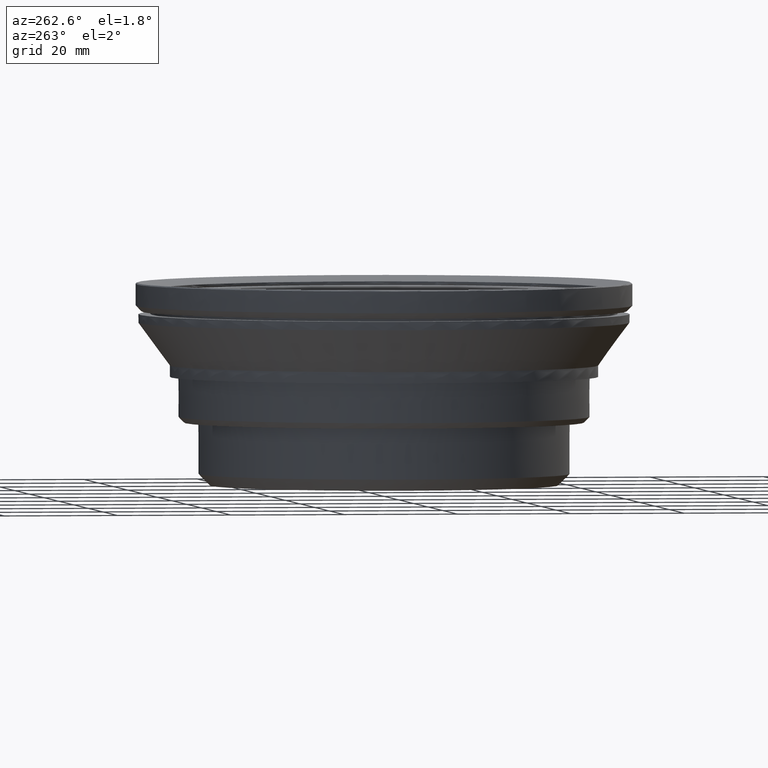
[diagram: clean part render]
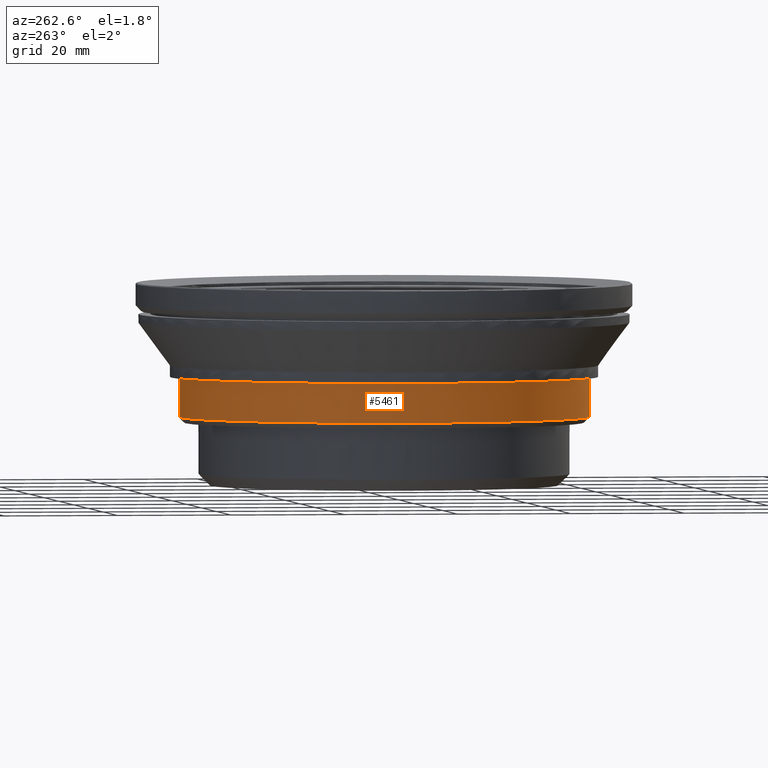
[diagram: same view with one face highlighted and labeled with its STEP entity id]
A machine part, auxiliary view. The second image highlights one B-rep face of the part: STEP entity #5461.
In plain terms, the highlighted face is a freeform B-spline surface patch.
Its self-contained STEP definition (entity closure, byte-faithful):
#26 = CARTESIAN_POINT ( 'NONE',  ( -18.30407988601000113, 31.15323146098999985, 36.74483058815000192 ) ) ;
#63 = CARTESIAN_POINT ( 'NONE',  ( -11.59271091205791393, -34.16425757263755258, 39.02656779053999969 ) ) ;
#96 = CARTESIAN_POINT ( 'NONE',  ( -8.384803192254999260, 35.14624101265000178, 34.30830499292999747 ) ) ;
#234 = CARTESIAN_POINT ( 'NONE',  ( -8.384803192254999260, 35.14624101265000178, 31.87177939771000013 ) ) ;
#256 = VERTEX_POINT ( 'NONE', #7863 ) ;
#306 = CARTESIAN_POINT ( 'NONE',  ( -18.30407988601000113, 31.15323146098999985, 34.30830499292999747 ) ) ;
#761 = CARTESIAN_POINT ( 'NONE',  ( -36.13257767156000000, 7.061018436615999384E-14, 31.87177939771000013 ) ) ;
#828 = CARTESIAN_POINT ( 'NONE',  ( -4.468998413519054136E-10, -35.99995644320841137, 34.35990112379400330 ) ) ;
#834 = CARTESIAN_POINT ( 'NONE',  ( -18.30407988601000113, -31.15323146098999985, 39.18135618336999926 ) ) ;
#839 = CARTESIAN_POINT ( 'NONE',  ( 2.260458703054999852, -35.92896222342000101, 36.74483058815000192 ) ) ;
#904 = CARTESIAN_POINT ( 'NONE',  ( -4.468998413519054136E-10, -35.99995644320841137, 36.69323445716798204 ) ) ;
#910 = CARTESIAN_POINT ( 'NONE',  ( -32.60532480877999717, -15.57099750563999940, 34.30830499292999747 ) ) ;
#954 = CARTESIAN_POINT ( 'NONE',  ( -35.76943308735074822, -4.704845493736523387, 39.02656779053999969 ) ) ;
#984 = CARTESIAN_POINT ( 'NONE',  ( -29.94243498859999875, 20.22408851081999970, 39.18135618336999926 ) ) ;
#1026 = CARTESIAN_POINT ( 'NONE',  ( -9.341657692462707274, 34.84710710128239697, 39.02656779054000680 ) ) ;
#1056 = CARTESIAN_POINT ( 'NONE',  ( -8.384803192254999260, -35.14624101265000178, 39.18135618336999926 ) ) ;
#1166 = CARTESIAN_POINT ( 'NONE',  ( -27.12731991324058711, 23.78436368885232710, 39.02656779053999969 ) ) ;
#1204 = CARTESIAN_POINT ( 'NONE',  ( -1.028158837222544530, 35.99994589421273616, 32.02656779053999969 ) ) ;
#1233 = CARTESIAN_POINT ( 'NONE',  ( -34.16426363842424507, -11.59271342576587038, 39.02656779053999969 ) ) ;
#1262 = CARTESIAN_POINT ( 'NONE',  ( -8.384803192254999260, 35.14624101265000178, 36.74483058815000192 ) ) ;
#1339 = CARTESIAN_POINT ( 'NONE',  ( 6.435159052657979714E-10, -35.99996733236304891, 32.02657867967800343 ) ) ;
#1399 = CARTESIAN_POINT ( 'NONE',  ( -13.49296625416000062, 33.51869666089000077, 36.74483058815000192 ) ) ;
#1407 = CARTESIAN_POINT ( 'NONE',  ( -18.30407988601000113, -31.15323146098999985, 32.02656779053999969 ) ) ;
#1851 = CARTESIAN_POINT ( 'NONE',  ( -22.71222522771999763, -28.10192153274000404, 36.74483058815000192 ) ) ;
#1917 = CARTESIAN_POINT ( 'NONE',  ( -3.659945000788314969E-16, -35.99997822160419503, 39.02656779054049707 ) ) ;
#1923 = CARTESIAN_POINT ( 'NONE',  ( -22.71222522771999763, -28.10192153274000404, 31.87177939771000013 ) ) ;
#1997 = CARTESIAN_POINT ( 'NONE',  ( -34.55040178576000187, 10.57510783065999860, 39.18135618336999926 ) ) ;
#2028 = CARTESIAN_POINT ( 'NONE',  ( -26.62035639124999875, 24.43194210390999999, 32.02656779053999969 ) ) ;
#2074 = CARTESIAN_POINT ( 'NONE',  ( -32.60532480877999717, 15.57099750563999940, 34.30830499292999747 ) ) ;
#2148 = CARTESIAN_POINT ( 'NONE',  ( -26.62035639124999875, 24.43194210390999999, 39.18135618336999926 ) ) ;
#2361 = CARTESIAN_POINT ( 'NONE',  ( -34.55040178576000187, 10.57510783065999860, 32.02656779053999969 ) ) ;
#2498 = CARTESIAN_POINT ( 'NONE',  ( -29.94243498859999875, 20.22408851081999970, 32.02656779053999969 ) ) ;
#2544 = ORIENTED_EDGE ( 'NONE', *, *, #3012, .F. ) ;
#2553 = CARTESIAN_POINT ( 'NONE',  ( -1.356187128775874025E-15, 35.99997822160419503, 39.02656779054049707 ) ) ;
#2611 = EDGE_CURVE ( 'NONE', #6477, #256, #5765, .T. ) ;
#3009 = CARTESIAN_POINT ( 'NONE',  ( -36.13257767156000000, 7.061018436615999384E-14, 39.18135618336999926 ) ) ;
#3012 = EDGE_CURVE ( 'NONE', #7858, #256, #6292, .T. ) ;
#3084 = CARTESIAN_POINT ( 'NONE',  ( -29.94243498859999875, -20.22408851081999970, 34.30830499292999747 ) ) ;
#3089 = CARTESIAN_POINT ( 'NONE',  ( 0.4818355163419000275, -36.04086370937999817, 39.18135618336999926 ) ) ;
#3133 = EDGE_CURVE ( 'NONE', #6477, #4769, #4383, .T. ) ;
#3165 = CARTESIAN_POINT ( 'NONE',  ( -29.94243498859999875, -20.22408851081999970, 36.74483058815000192 ) ) ;
#3236 = ORIENTED_EDGE ( 'NONE', *, *, #2611, .T. ) ;
#3241 = CARTESIAN_POINT ( 'NONE',  ( -3.092043403911000077, -36.00003351131999807, 34.30830499292999747 ) ) ;
#3282 = CARTESIAN_POINT ( 'NONE',  ( -31.24617523878921332, 18.03507623265861426, 39.02656779053999969 ) ) ;
#3313 = CARTESIAN_POINT ( 'NONE',  ( -13.49296625416000062, -33.51869666089000077, 39.18135618336999926 ) ) ;
#3382 = CARTESIAN_POINT ( 'NONE',  ( -22.71222522771999763, 28.10192153274000404, 31.87177939771000013 ) ) ;
#3485 = CARTESIAN_POINT ( 'NONE',  ( -35.76942664802785998, 4.704844210638986723, 39.02656779054000680 ) ) ;
#3585 = CARTESIAN_POINT ( 'NONE',  ( -3.092043403909999988, 36.00003351131999807, 34.30830499292999747 ) ) ;
#3893 = B_SPLINE_CURVE_WITH_KNOTS ( 'NONE', 3,
 ( #11169, #6570, #10135, #1026, #14461, #4375, #8829, #6640, #13290, #1166, #13358, #3282, #13494, #7739, #4579, #3485, #12194, #6776, #954, #4447, #1233, #10952, #7808, #12262, #5398, #8898, #5610, #10068, #7940, #63, #4513, #8967, #7876, #12329 ),
 .UNSPECIFIED., .F., .F.,
 ( 4, 2, 2, 2, 2, 2, 2, 2, 2, 2, 2, 2, 2, 2, 2, 2, 4 ),
 ( 0.000000000000000000, 0.06250000000000000000, 0.1250000000000000000, 0.1875000000000000000, 0.2500000000000000000, 0.3125000000000000000, 0.3750000000000000000, 0.4375000000000000000, 0.5000000000000000000, 0.5625000000000000000, 0.6250000000000000000, 0.6875000000000000000, 0.7500000000000000000, 0.8125000000000000000, 0.8750000000000000000, 0.9375000000000000000, 1.000000000000000000 ),
 .UNSPECIFIED. ) ;
#3903 = ORIENTED_EDGE ( 'NONE', *, *, #7420, .F. ) ;
#4107 = CARTESIAN_POINT ( 'NONE',  ( -22.71222522771999763, -28.10192153274000404, 34.30830499292999747 ) ) ;
#4180 = CARTESIAN_POINT ( 'NONE',  ( -26.62035639124999875, -24.43194210390999999, 39.18135618336999926 ) ) ;
#4259 = CARTESIAN_POINT ( 'NONE',  ( -26.62035639124999875, -24.43194210390999999, 34.30830499292999747 ) ) ;
#4333 = CARTESIAN_POINT ( 'NONE',  ( -34.55040178576000187, -10.57510783065999860, 36.74483058815000192 ) ) ;
#4375 = CARTESIAN_POINT ( 'NONE',  ( -15.96049370617985730, 32.35506270166639808, 39.02656779053999969 ) ) ;
#4383 = B_SPLINE_CURVE_WITH_KNOTS ( 'NONE', 3,
 ( #5961, #11585, #8148, #12684 ),
 .UNSPECIFIED., .F., .F.,
 ( 4, 4 ),
 ( 0.000000000000000000, 1.000000000000000000 ),
 .UNSPECIFIED. ) ;
#4405 = CARTESIAN_POINT ( 'NONE',  ( -3.092043403911000077, -36.00003351131999807, 36.74483058815000192 ) ) ;
#4447 = CARTESIAN_POINT ( 'NONE',  ( -34.84710710168654657, -9.341657691401159980, 39.02656779053999969 ) ) ;
#4475 = CARTESIAN_POINT ( 'NONE',  ( -22.71222522771999763, 28.10192153274000404, 34.30830499292999747 ) ) ;
#4513 = CARTESIAN_POINT ( 'NONE',  ( -9.341642469825295336, -34.84711682418733858, 39.02656779053999969 ) ) ;
#4543 = CARTESIAN_POINT ( 'NONE',  ( 0.4818355163420000031, 36.04086370937999817, 36.74483058815000192 ) ) ;
#4579 = CARTESIAN_POINT ( 'NONE',  ( -34.84711354100112857, 9.341658974540585803, 39.02656779054000680 ) ) ;
#4678 = CARTESIAN_POINT ( 'NONE',  ( -13.49296625416000062, 33.51869666089000077, 31.87177939771000013 ) ) ;
#4748 = CARTESIAN_POINT ( 'NONE',  ( -13.49296625416000062, 33.51869666089000077, 34.30830499292999747 ) ) ;
#4769 = VERTEX_POINT ( 'NONE', #2553 ) ;
#5205 = CARTESIAN_POINT ( 'NONE',  ( -8.384803192254999260, -35.14624101265000178, 31.87177939771000013 ) ) ;
#5280 = CARTESIAN_POINT ( 'NONE',  ( -29.94243498859999875, -20.22408851081999970, 39.18135618336999926 ) ) ;
#5347 = CARTESIAN_POINT ( 'NONE',  ( 6.435159052657979714E-10, -35.99996733236304891, 32.02657867967800343 ) ) ;
#5353 = CARTESIAN_POINT ( 'NONE',  ( -34.55040178576000187, -10.57510783065999860, 34.30830499292999747 ) ) ;
#5384 = CARTESIAN_POINT ( 'NONE',  ( -32.60532480877999717, -15.57099750563999940, 32.02656779053999969 ) ) ;
#5398 = CARTESIAN_POINT ( 'NONE',  ( -27.12732455508185225, -23.78436833326820476, 39.02656779053999969 ) ) ;
#5430 = CARTESIAN_POINT ( 'NONE',  ( -29.94243498859999875, 20.22408851081999970, 31.87177939771000013 ) ) ;
#5461 = ADVANCED_FACE ( 'NONE', ( #12008 ), #10558, .T. ) ;
#5501 = CARTESIAN_POINT ( 'NONE',  ( -29.94243498859999875, 20.22408851081999970, 34.30830499292999747 ) ) ;
#5572 = CARTESIAN_POINT ( 'NONE',  ( 0.4818355163420000031, 36.04086370937999817, 31.87177939771000013 ) ) ;
#5610 = CARTESIAN_POINT ( 'NONE',  ( -21.96598054292132929, -28.61963684813416009, 39.02656779053999969 ) ) ;
#5647 = CARTESIAN_POINT ( 'NONE',  ( -26.62035639124999875, -24.43194210390999999, 32.02656779053999969 ) ) ;
#5706 = CARTESIAN_POINT ( 'NONE',  ( -8.384803192254999260, 35.14624101265000178, 39.18135618336999926 ) ) ;
#5765 = B_SPLINE_CURVE_WITH_KNOTS ( 'NONE', 3,
 ( #14301, #1204, #5857, #9212, #13602, #9838, #10171, #2028, #2498, #9003, #2361, #6951, #11407, #9070, #10938, #5384, #12436, #5647, #8936, #1407, #10311, #13531, #6881, #11337, #1339 ),
 .UNSPECIFIED., .F., .F.,
 ( 4, 1, 1, 1, 1, 1, 1, 1, 1, 1, 1, 1, 1, 1, 1, 1, 1, 1, 1, 1, 1, 1, 4 ),
 ( 0.000000000000000000, 0.02727273976104304526, 0.07454546578490035824, 0.1218181918087576643, 0.1690909178329333129, 0.2163636438567906328, 0.2636363698806480915, 0.3109090959045053837, 0.3581818219283628424, 0.4054545479522200235, 0.4527272739763955056, 0.5000000000002529088, 0.5472727260241103675, 0.5945454520479678262, 0.6418181780718250629, 0.6890909040956825216, 0.7363636301195399803, 0.7836363561437154068, 0.8309090821675728655, 0.8781818081914301022, 0.9254545342152872278, 0.9727272602391449086, 1.000000000000000000 ),
 .UNSPECIFIED. ) ;
#5857 = CARTESIAN_POINT ( 'NONE',  ( -3.838457752893203345, 35.87962695641364519, 32.02656779053999969 ) ) ;
#5961 = CARTESIAN_POINT ( 'NONE',  ( -6.435178800505199868E-10, 35.99996733236299917, 32.02657867967800343 ) ) ;
#6292 = B_SPLINE_CURVE_WITH_KNOTS ( 'NONE', 3,
 ( #1917, #904, #828, #5347 ),
 .UNSPECIFIED., .F., .F.,
 ( 4, 4 ),
 ( 0.000000000000000000, 1.000000000000000000 ),
 .UNSPECIFIED. ) ;
#6304 = CARTESIAN_POINT ( 'NONE',  ( -32.60532480877999717, -15.57099750563999940, 39.18135618336999926 ) ) ;
#6378 = CARTESIAN_POINT ( 'NONE',  ( -26.62035639124999875, -24.43194210390999999, 36.74483058815000192 ) ) ;
#6452 = CARTESIAN_POINT ( 'NONE',  ( -34.55040178576000187, 10.57510783065999860, 36.74483058815000192 ) ) ;
#6477 = VERTEX_POINT ( 'NONE', #8472 ) ;
#6527 = CARTESIAN_POINT ( 'NONE',  ( -34.55040178576000187, 10.57510783065999860, 34.30830499292999747 ) ) ;
#6570 = CARTESIAN_POINT ( 'NONE',  ( -2.363810508526870802, 36.00000000000000000, 39.02656779053998548 ) ) ;
#6599 = CARTESIAN_POINT ( 'NONE',  ( -35.73484465689000444, -5.346405010930999957, 34.30830499292999747 ) ) ;
#6640 = CARTESIAN_POINT ( 'NONE',  ( -21.96597689723947511, 28.61963138678771656, 39.02656779053999969 ) ) ;
#6666 = CARTESIAN_POINT ( 'NONE',  ( 2.260458703054999852, 35.92896222342000101, 34.30830499292999747 ) ) ;
#6739 = CARTESIAN_POINT ( 'NONE',  ( -13.49296625416000062, 33.51869666089000077, 39.18135618336999926 ) ) ;
#6776 = CARTESIAN_POINT ( 'NONE',  ( -35.99999671671768908, -2.363827013607919802, 39.02656779053999969 ) ) ;
#6807 = CARTESIAN_POINT ( 'NONE',  ( -18.30407988601000113, 31.15323146098999985, 39.18135618336999926 ) ) ;
#6873 = CARTESIAN_POINT ( 'NONE',  ( -3.092043403909999988, 36.00003351131999807, 31.87177939771000013 ) ) ;
#6881 = CARTESIAN_POINT ( 'NONE',  ( -3.838457752901068609, -35.87962695641251543, 32.02656779053999969 ) ) ;
#6951 = CARTESIAN_POINT ( 'NONE',  ( -35.73484465689000444, 5.346405010930999957, 32.02656779053999969 ) ) ;
#7420 = EDGE_CURVE ( 'NONE', #4769, #7858, #3893, .T. ) ;
#7471 = CARTESIAN_POINT ( 'NONE',  ( 0.4818355163419000275, -36.04086370937999817, 34.30830499292999747 ) ) ;
#7546 = CARTESIAN_POINT ( 'NONE',  ( -35.73484465689000444, 5.346405010930999957, 34.30830499292999747 ) ) ;
#7551 = CARTESIAN_POINT ( 'NONE',  ( 0.4818355163419000275, -36.04086370937999817, 36.74483058815000192 ) ) ;
#7624 = CARTESIAN_POINT ( 'NONE',  ( -35.73484465689000444, -5.346405010930999957, 39.18135618336999926 ) ) ;
#7698 = CARTESIAN_POINT ( 'NONE',  ( -32.60532480877999717, 15.57099750563999940, 36.74483058815000192 ) ) ;
#7739 = CARTESIAN_POINT ( 'NONE',  ( -34.16425757257792384, 11.59271091126488784, 39.02656779053999969 ) ) ;
#7808 = CARTESIAN_POINT ( 'NONE',  ( -31.24618069698289702, -18.03507988259729089, 39.02656779053999969 ) ) ;
#7838 = CARTESIAN_POINT ( 'NONE',  ( 0.4818355163420000031, 36.04086370937999817, 39.18135618336999926 ) ) ;
#7858 = VERTEX_POINT ( 'NONE', #13532 ) ;
#7863 = CARTESIAN_POINT ( 'NONE',  ( 6.435159052657979714E-10, -35.99996733236304891, 32.02657867967800343 ) ) ;
#7876 = CARTESIAN_POINT ( 'NONE',  ( -2.363776851182251448, -36.00000000000001421, 39.02656779053999969 ) ) ;
#7940 = CARTESIAN_POINT ( 'NONE',  ( -15.96049621826308496, -32.35506876816081956, 39.02656779053999969 ) ) ;
#7969 = CARTESIAN_POINT ( 'NONE',  ( 2.260458703054999852, 35.92896222342000101, 31.87177939771000013 ) ) ;
#7990 = EDGE_LOOP ( 'NONE', ( #3903, #8366, #3236, #2544 ) ) ;
#8148 = CARTESIAN_POINT ( 'NONE',  ( -1.744612158731395635E-09, 35.99995644320831900, 36.69323445716800336 ) ) ;
#8366 = ORIENTED_EDGE ( 'NONE', *, *, #3133, .F. ) ;
#8472 = CARTESIAN_POINT ( 'NONE',  ( -6.435178800505199868E-10, 35.99996733236299917, 32.02657867967800343 ) ) ;
#8562 = CARTESIAN_POINT ( 'NONE',  ( -35.73484465689000444, -5.346405010930999957, 36.74483058815000192 ) ) ;
#8636 = CARTESIAN_POINT ( 'NONE',  ( -36.13257767156000000, 7.061018436615999384E-14, 34.30830499292999747 ) ) ;
#8642 = CARTESIAN_POINT ( 'NONE',  ( 2.260458703054999852, -35.92896222342000101, 31.87177939771000013 ) ) ;
#8715 = CARTESIAN_POINT ( 'NONE',  ( -34.55040178576000187, 10.57510783065999860, 31.87177939771000013 ) ) ;
#8788 = CARTESIAN_POINT ( 'NONE',  ( -8.384803192254999260, -35.14624101265000178, 34.30830499292999747 ) ) ;
#8829 = CARTESIAN_POINT ( 'NONE',  ( -18.03507988016521324, 31.24618069899998218, 39.02656779053999969 ) ) ;
#8857 = CARTESIAN_POINT ( 'NONE',  ( 0.4818355163419000275, -36.04086370937999817, 31.87177939771000013 ) ) ;
#8898 = CARTESIAN_POINT ( 'NONE',  ( -23.78436369037224551, -27.12731991214060656, 39.02656779053999969 ) ) ;
#8936 = CARTESIAN_POINT ( 'NONE',  ( -22.71222522771999763, -28.10192153274000404, 32.02656779053999969 ) ) ;
#8967 = CARTESIAN_POINT ( 'NONE',  ( -4.704860715375212443, -35.76942336483747908, 39.02656779053999969 ) ) ;
#9003 = CARTESIAN_POINT ( 'NONE',  ( -32.60532480877999717, 15.57099750563999940, 32.02656779053999969 ) ) ;
#9070 = CARTESIAN_POINT ( 'NONE',  ( -35.73484465689000444, -5.346405010930999957, 32.02656779053999969 ) ) ;
#9204 = CARTESIAN_POINT ( 'NONE',  ( 2.260458703054999852, 35.92896222342000101, 36.74483058815000192 ) ) ;
#9212 = CARTESIAN_POINT ( 'NONE',  ( -8.384803192254999260, 35.14624101265000178, 32.02656779053999969 ) ) ;
#9656 = CARTESIAN_POINT ( 'NONE',  ( -3.092043403911000077, -36.00003351131999807, 31.87177939771000013 ) ) ;
#9731 = CARTESIAN_POINT ( 'NONE',  ( -32.60532480877999717, -15.57099750563999940, 31.87177939771000013 ) ) ;
#9736 = CARTESIAN_POINT ( 'NONE',  ( 2.260458703054999852, -35.92896222342000101, 39.18135618336999926 ) ) ;
#9806 = CARTESIAN_POINT ( 'NONE',  ( -18.30407988601000113, -31.15323146098999985, 31.87177939771000013 ) ) ;
#9838 = CARTESIAN_POINT ( 'NONE',  ( -18.30407988601000113, 31.15323146098999985, 32.02656779053999969 ) ) ;
#9883 = CARTESIAN_POINT ( 'NONE',  ( -32.60532480877999717, -15.57099750563999940, 36.74483058815000192 ) ) ;
#9957 = CARTESIAN_POINT ( 'NONE',  ( -13.49296625416000062, -33.51869666089000077, 31.87177939771000013 ) ) ;
#10033 = CARTESIAN_POINT ( 'NONE',  ( -26.62035639124999875, 24.43194210390999999, 34.30830499292999747 ) ) ;
#10068 = CARTESIAN_POINT ( 'NONE',  ( -18.03507623451885777, -31.24617523762983140, 39.02656779053999969 ) ) ;
#10135 = CARTESIAN_POINT ( 'NONE',  ( -4.704845492695934439, 35.76943308775074115, 39.02656779054001390 ) ) ;
#10171 = CARTESIAN_POINT ( 'NONE',  ( -22.71222522771999763, 28.10192153274000404, 32.02656779053999969 ) ) ;
#10234 = CARTESIAN_POINT ( 'NONE',  ( 0.4818355163420000031, 36.04086370937999817, 34.30830499292999747 ) ) ;
#10303 = CARTESIAN_POINT ( 'NONE',  ( -22.71222522771999763, 28.10192153274000404, 39.18135618336999926 ) ) ;
#10311 = CARTESIAN_POINT ( 'NONE',  ( -13.49296625416000062, -33.51869666089000077, 32.02656779053999969 ) ) ;
#10558 = B_SPLINE_SURFACE_WITH_KNOTS ( 'NONE', 3, 3, ( 
 ( #9736, #839, #14199, #8642 ),
 ( #3089, #7551, #7471, #8857 ),
 ( #14121, #4405, #3241, #9656 ),
 ( #1056, #13317, #8788, #5205 ),
 ( #3313, #13249, #10830, #9957 ),
 ( #834, #11853, #14347, #9806 ),
 ( #10906, #1851, #4107, #1923 ),
 ( #4180, #6378, #4259, #14419 ),
 ( #5280, #3165, #3084, #14271 ),
 ( #6304, #9883, #910, #9731 ),
 ( #13175, #4333, #5353, #10757 ),
 ( #7624, #8562, #6599, #13022 ),
 ( #3009, #11927, #8636, #761 ),
 ( #13095, #14194, #7546, #12002 ),
 ( #1997, #6452, #6527, #8715 ),
 ( #12080, #7698, #2074, #10984 ),
 ( #984, #12153, #5501, #5430 ),
 ( #2148, #11059, #10033, #13388 ),
 ( #10303, #11398, #4475, #3382 ),
 ( #6807, #26, #306, #13593 ),
 ( #6739, #1399, #4748, #4678 ),
 ( #5706, #1262, #96, #234 ),
 ( #11128, #12497, #3585, #6873 ),
 ( #7838, #4543, #10234, #5572 ),
 ( #11198, #9204, #6666, #7969 ) ),
 .UNSPECIFIED., .F., .F., .F.,
 ( 4, 1, 1, 1, 1, 1, 1, 1, 1, 1, 1, 1, 1, 1, 1, 1, 1, 1, 1, 1, 1, 1, 4 ),
 ( 4, 4 ),
 ( -6.346017160250999822, -6.197505507536000380, -6.048993854820999161, -5.900482202105999718, -5.751970549391000276, -5.603458896675999945, -5.454947243960000414, -5.306435591245000083, -5.157923938529999752, -5.009412285815000310, -4.860900633099999979, -4.712388980384999648, -4.563877327669999318, -4.415365674953999786, -4.266854022239000344, -4.118342369524000013, -3.969830716809000126, -3.821319064093999796, -3.672807411378999909, -3.524295758662999933, -3.375784105948000047, -3.227272453233000160, -3.078760800517999829 ),
 ( 17.33653999669999735, 24.64611678236000003 ),
 .UNSPECIFIED. ) ;
#10757 = CARTESIAN_POINT ( 'NONE',  ( -34.55040178576000187, -10.57510783065999860, 31.87177939771000013 ) ) ;
#10830 = CARTESIAN_POINT ( 'NONE',  ( -13.49296625416000062, -33.51869666089000077, 34.30830499292999747 ) ) ;
#10906 = CARTESIAN_POINT ( 'NONE',  ( -22.71222522771999763, -28.10192153274000404, 39.18135618336999926 ) ) ;
#10938 = CARTESIAN_POINT ( 'NONE',  ( -34.55040178576000187, -10.57510783065999860, 32.02656779053999969 ) ) ;
#10952 = CARTESIAN_POINT ( 'NONE',  ( -32.35506270239863369, -15.96049370449592963, 39.02656779053999969 ) ) ;
#10984 = CARTESIAN_POINT ( 'NONE',  ( -32.60532480877999717, 15.57099750563999940, 31.87177939771000013 ) ) ;
#11059 = CARTESIAN_POINT ( 'NONE',  ( -26.62035639124999875, 24.43194210390999999, 36.74483058815000192 ) ) ;
#11128 = CARTESIAN_POINT ( 'NONE',  ( -3.092043403909999988, 36.00003351131999807, 39.18135618336999926 ) ) ;
#11169 = CARTESIAN_POINT ( 'NONE',  ( -1.356187128775874025E-15, 35.99997822160419503, 39.02656779054049707 ) ) ;
#11198 = CARTESIAN_POINT ( 'NONE',  ( 2.260458703054999852, 35.92896222342000101, 39.18135618336999926 ) ) ;
#11337 = CARTESIAN_POINT ( 'NONE',  ( -1.028158837237107104, -35.99994589421212510, 32.02656779053999969 ) ) ;
#11398 = CARTESIAN_POINT ( 'NONE',  ( -22.71222522771999763, 28.10192153274000404, 36.74483058815000192 ) ) ;
#11407 = CARTESIAN_POINT ( 'NONE',  ( -36.13257767156000000, 7.061018436615999384E-14, 32.02656779053999969 ) ) ;
#11585 = CARTESIAN_POINT ( 'NONE',  ( -1.744612158731395635E-09, 35.99995644320831900, 34.35990112379401040 ) ) ;
#11853 = CARTESIAN_POINT ( 'NONE',  ( -18.30407988601000113, -31.15323146098999985, 36.74483058815000192 ) ) ;
#11927 = CARTESIAN_POINT ( 'NONE',  ( -36.13257767156000000, 7.061018436615999384E-14, 36.74483058815000192 ) ) ;
#12002 = CARTESIAN_POINT ( 'NONE',  ( -35.73484465689000444, 5.346405010930999957, 31.87177939771000013 ) ) ;
#12008 = FACE_OUTER_BOUND ( 'NONE', #7990, .T. ) ;
#12080 = CARTESIAN_POINT ( 'NONE',  ( -32.60532480877999717, 15.57099750563999940, 39.18135618336999926 ) ) ;
#12153 = CARTESIAN_POINT ( 'NONE',  ( -29.94243498859999875, 20.22408851081999970, 36.74483058815000192 ) ) ;
#12194 = CARTESIAN_POINT ( 'NONE',  ( -36.00000328328230381, 2.363827013629263174, 39.02656779053999969 ) ) ;
#12262 = CARTESIAN_POINT ( 'NONE',  ( -28.61963138881669266, -21.96597689478968718, 39.02656779053999969 ) ) ;
#12329 = CARTESIAN_POINT ( 'NONE',  ( -3.659945000788314969E-16, -35.99997822160419503, 39.02656779054049707 ) ) ;
#12436 = CARTESIAN_POINT ( 'NONE',  ( -29.94243498859999875, -20.22408851081999970, 32.02656779053999969 ) ) ;
#12497 = CARTESIAN_POINT ( 'NONE',  ( -3.092043403909999988, 36.00003351131999807, 36.74483058815000192 ) ) ;
#12684 = CARTESIAN_POINT ( 'NONE',  ( -1.356187128775874025E-15, 35.99997822160419503, 39.02656779054049707 ) ) ;
#13022 = CARTESIAN_POINT ( 'NONE',  ( -35.73484465689000444, -5.346405010930999957, 31.87177939771000013 ) ) ;
#13095 = CARTESIAN_POINT ( 'NONE',  ( -35.73484465689000444, 5.346405010930999957, 39.18135618336999926 ) ) ;
#13175 = CARTESIAN_POINT ( 'NONE',  ( -34.55040178576000187, -10.57510783065999860, 39.18135618336999926 ) ) ;
#13249 = CARTESIAN_POINT ( 'NONE',  ( -13.49296625416000062, -33.51869666089000077, 36.74483058815000192 ) ) ;
#13290 = CARTESIAN_POINT ( 'NONE',  ( -23.78436833218331614, 27.12732455658667163, 39.02656779053999969 ) ) ;
#13317 = CARTESIAN_POINT ( 'NONE',  ( -8.384803192254999260, -35.14624101265000178, 36.74483058815000192 ) ) ;
#13358 = CARTESIAN_POINT ( 'NONE',  ( -28.61963684698668686, 21.96598054476388029, 39.02656779053999969 ) ) ;
#13388 = CARTESIAN_POINT ( 'NONE',  ( -26.62035639124999875, 24.43194210390999999, 31.87177939771000013 ) ) ;
#13494 = CARTESIAN_POINT ( 'NONE',  ( -32.35506876822859823, 15.96049621903635263, 39.02656779053999969 ) ) ;
#13531 = CARTESIAN_POINT ( 'NONE',  ( -8.384803192254999260, -35.14624101265000178, 32.02656779053999969 ) ) ;
#13532 = CARTESIAN_POINT ( 'NONE',  ( -3.659945000788314969E-16, -35.99997822160419503, 39.02656779054049707 ) ) ;
#13593 = CARTESIAN_POINT ( 'NONE',  ( -18.30407988601000113, 31.15323146098999985, 31.87177939771000013 ) ) ;
#13602 = CARTESIAN_POINT ( 'NONE',  ( -13.49296625416000062, 33.51869666089000077, 32.02656779053999969 ) ) ;
#14121 = CARTESIAN_POINT ( 'NONE',  ( -3.092043403911000077, -36.00003351131999807, 39.18135618336999926 ) ) ;
#14194 = CARTESIAN_POINT ( 'NONE',  ( -35.73484465689000444, 5.346405010930999957, 36.74483058815000192 ) ) ;
#14199 = CARTESIAN_POINT ( 'NONE',  ( 2.260458703054999852, -35.92896222342000101, 34.30830499292999747 ) ) ;
#14271 = CARTESIAN_POINT ( 'NONE',  ( -29.94243498859999875, -20.22408851081999970, 31.87177939771000013 ) ) ;
#14301 = CARTESIAN_POINT ( 'NONE',  ( -6.435178800505199868E-10, 35.99996733236299917, 32.02657867967800343 ) ) ;
#14347 = CARTESIAN_POINT ( 'NONE',  ( -18.30407988601000113, -31.15323146098999985, 34.30830499292999747 ) ) ;
#14419 = CARTESIAN_POINT ( 'NONE',  ( -26.62035639124999875, -24.43194210390999999, 31.87177939771000013 ) ) ;
#14461 = CARTESIAN_POINT ( 'NONE',  ( -11.59271342410170647, 34.16426363914832365, 39.02656779053999969 ) ) ;